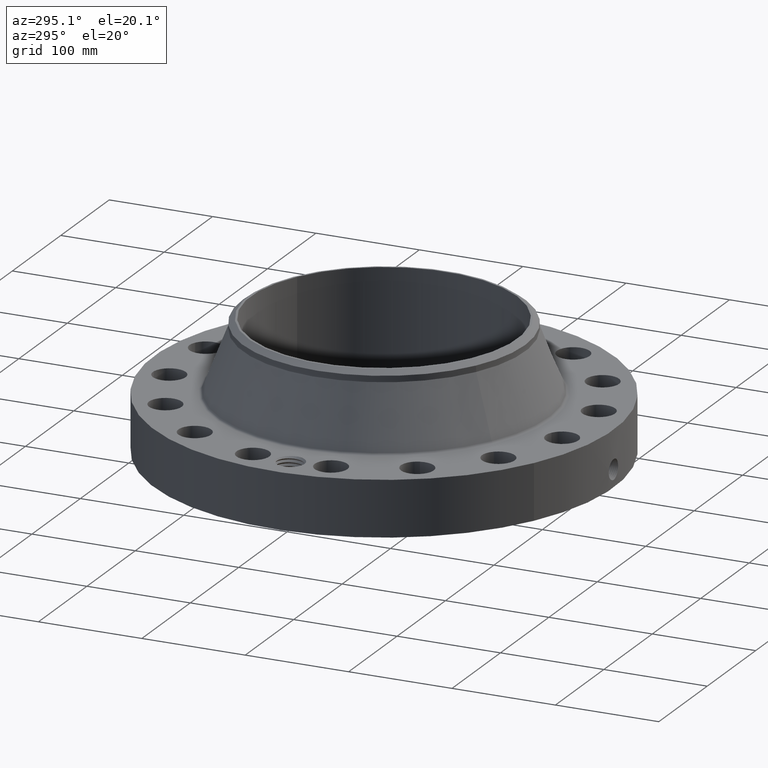
[diagram: clean part render]
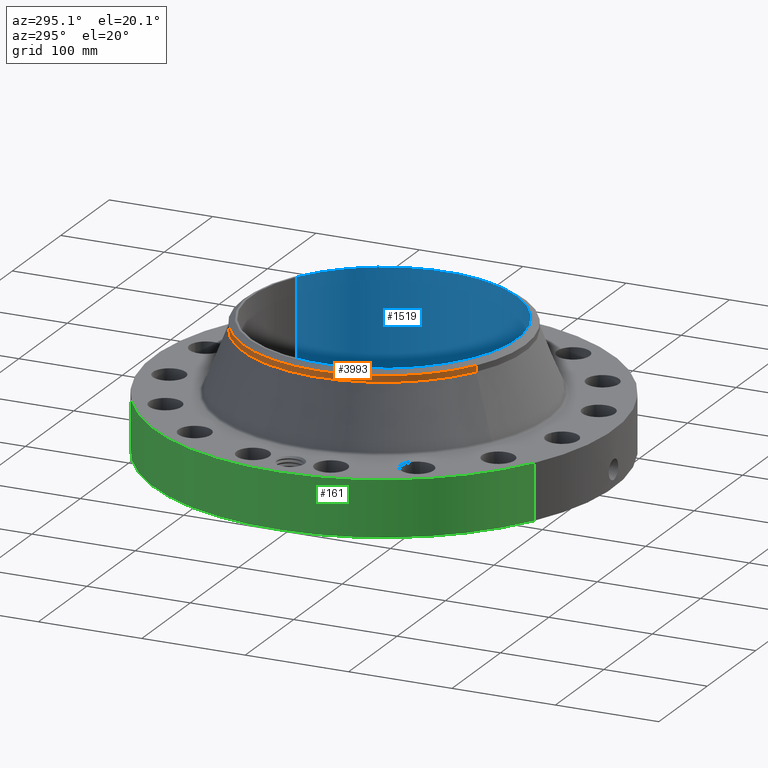
[diagram: same view with three faces highlighted in distinct colors, each labeled with its STEP entity id]
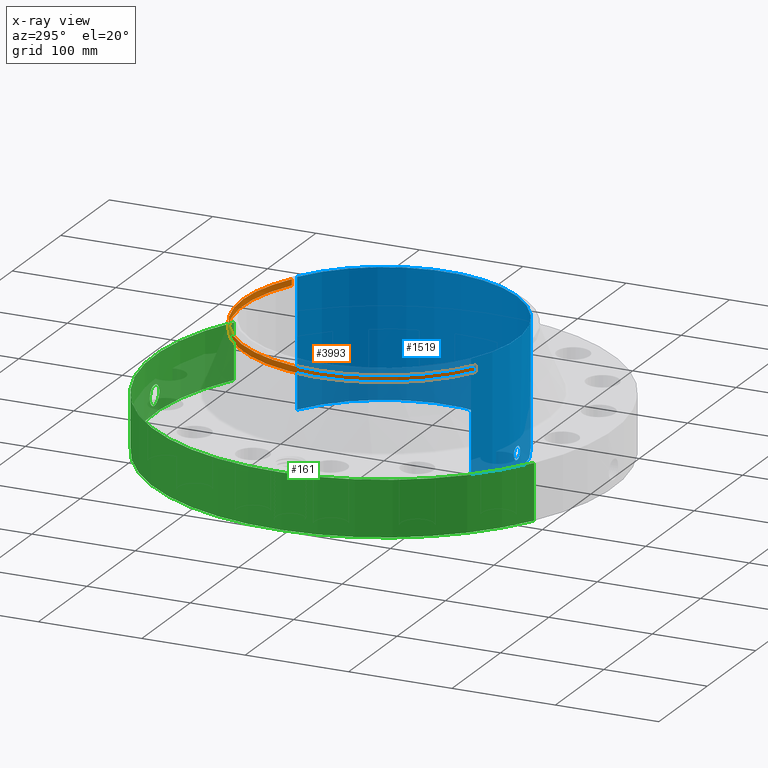
[diagram: x-ray of the same camera — body ghosted, the three highlighted faces saturated]
A machine part, auxiliary view with three faces highlighted in distinct colors.
The next image is the same camera in x-ray (body ghosted, the three faces saturated) — at least one of them is partly hidden behind the body in this view.
Their STEP definitions:

[orange] entity #3993 — the highlighted cylindrical surface (partial cylindrical patch) has radius 136.525 mm, axis along (0, 0, -1).
#3191=AXIS2_PLACEMENT_3D('Circle Axis2P3D',#3189,#3190,$) ;
#3620=AXIS2_PLACEMENT_3D('Circle Axis2P3D',#3618,#3619,$) ;
#3647=AXIS2_PLACEMENT_3D('Circle Axis2P3D',#3645,#3646,$) ;
#3966=AXIS2_PLACEMENT_3D('Cylinder Axis2P3D',#3963,#3964,#3965) ;
#3167=CARTESIAN_POINT('Vertex',(2.57691227001,4.71700627018,4.71862959014)) ;
#3174=CARTESIAN_POINT('Vertex',(-2.57691227001,-4.71700627018,4.71862959014)) ;
#3189=CARTESIAN_POINT('Axis2P3D Location',(0.,0.,4.71862959014)) ;
#3615=CARTESIAN_POINT('Vertex',(-2.57691227001,4.71700627018,4.95485006258)) ;
#3618=CARTESIAN_POINT('Axis2P3D Location',(0.,0.,4.95485006258)) ;
#3622=CARTESIAN_POINT('Vertex',(-2.57691227001,-4.71700627018,4.95485006258)) ;
#3642=CARTESIAN_POINT('Vertex',(2.57691227001,4.71700627018,4.95485006258)) ;
#3645=CARTESIAN_POINT('Axis2P3D Location',(0.,0.,4.95485006258)) ;
#3963=CARTESIAN_POINT('Axis2P3D Location',(0.,0.,2.69000000001)) ;
#3968=CARTESIAN_POINT('Line Origine',(-2.57691227001,-4.71700627018,4.83673982636)) ;
#3973=CARTESIAN_POINT('Line Origine',(2.57691227001,4.71700627018,4.83673982636)) ;
#3190=DIRECTION('Axis2P3D Direction',(0.,0.,-0.0393700787402)) ;
#3619=DIRECTION('Axis2P3D Direction',(0.,0.,-0.0393700787402)) ;
#3646=DIRECTION('Axis2P3D Direction',(0.,0.,-0.0393700787402)) ;
#3964=DIRECTION('Axis2P3D Direction',(0.,0.,-0.0393700787402)) ;
#3965=DIRECTION('Axis2P3D XDirection',(-0.0188750212049,-0.0345504945626,0.)) ;
#3969=DIRECTION('Vector Direction',(0.,0.,-0.0393700787402)) ;
#3974=DIRECTION('Vector Direction',(0.,0.,-0.0393700787402)) ;
#3970=VECTOR('Line Direction',#3969,0.0393700787402) ;
#3975=VECTOR('Line Direction',#3974,0.0393700787402) ;
#3987=ORIENTED_EDGE('',*,*,#3977,.F.) ;
#3988=ORIENTED_EDGE('',*,*,#3193,.F.) ;
#3989=ORIENTED_EDGE('',*,*,#3972,.T.) ;
#3990=ORIENTED_EDGE('',*,*,#3624,.F.) ;
#3991=ORIENTED_EDGE('',*,*,#3649,.T.) ;
#3993=ADVANCED_FACE('PartBody',(#3992),#3967,.T.) ;
#3192=CIRCLE('generated circle',#3191,5.37500000002) ;
#3621=CIRCLE('generated circle',#3620,5.37500000002) ;
#3648=CIRCLE('generated circle',#3647,5.37500000002) ;
#3967=CYLINDRICAL_SURFACE('generated cylinder',#3966,5.37500000002) ;
#3193=EDGE_CURVE('',#3175,#3168,#3192,.T.) ;
#3624=EDGE_CURVE('',#3616,#3623,#3621,.F.) ;
#3649=EDGE_CURVE('',#3616,#3643,#3648,.T.) ;
#3972=EDGE_CURVE('',#3175,#3623,#3971,.F.) ;
#3977=EDGE_CURVE('',#3168,#3643,#3976,.F.) ;
#3986=EDGE_LOOP('',(#3987,#3988,#3989,#3990,#3991)) ;
#3992=FACE_OUTER_BOUND('',#3986,.T.) ;
#3971=LINE('Line',#3968,#3970) ;
#3976=LINE('Line',#3973,#3975) ;
#3168=VERTEX_POINT('',#3167) ;
#3175=VERTEX_POINT('',#3174) ;
#3616=VERTEX_POINT('',#3615) ;
#3623=VERTEX_POINT('',#3622) ;
#3643=VERTEX_POINT('',#3642) ;

[blue] entity #1519 — the highlighted cylindrical surface (partial cylindrical patch) has radius 128.727 mm, axis along (0, 0, -1).
#250=AXIS2_PLACEMENT_3D('Circle Axis2P3D',#248,#249,$) ;
#1450=AXIS2_PLACEMENT_3D('Cylinder Axis2P3D',#1447,#1448,#1449) ;
#1454=AXIS2_PLACEMENT_3D('Circle Axis2P3D',#1452,#1453,$) ;
#248=CARTESIAN_POINT('Axis2P3D Location',(0.,0.,0.250000000001)) ;
#252=CARTESIAN_POINT('Vertex',(2.42972862966,4.44758842368,0.250000000001)) ;
#254=CARTESIAN_POINT('Vertex',(-2.42972862966,-4.44758842368,0.250000000001)) ;
#1447=CARTESIAN_POINT('Axis2P3D Location',(0.,0.,2.69000000001)) ;
#1452=CARTESIAN_POINT('Axis2P3D Location',(0.,0.,5.13000000002)) ;
#1456=CARTESIAN_POINT('Vertex',(2.42972862966,4.44758842368,5.13000000002)) ;
#1458=CARTESIAN_POINT('Vertex',(-2.42972862966,-4.44758842368,5.13000000002)) ;
#1461=CARTESIAN_POINT('Line Origine',(2.42972862966,4.44758842368,2.69000000001)) ;
#1466=CARTESIAN_POINT('Line Origine',(-2.42972862966,-4.44758842368,2.69000000001)) ;
#1478=CARTESIAN_POINT('Control Point',(0.219395640473,-5.06324891282,0.820143615352)) ;
#1479=CARTESIAN_POINT('Control Point',(0.206921719494,-5.06378942029,0.797310256157)) ;
#1480=CARTESIAN_POINT('Control Point',(0.19147825999,-5.06442011497,0.776101319629)) ;
#1481=CARTESIAN_POINT('Control Point',(0.173345217367,-5.0650922661,0.757029760985)) ;
#1482=CARTESIAN_POINT('Control Point',(0.112136795122,-5.06703633096,0.70755106362)) ;
#1483=CARTESIAN_POINT('Control Point',(0.0349822800749,-5.06829938306,0.684026557529)) ;
#1484=CARTESIAN_POINT('Control Point',(-0.0195598942694,-5.06839375583,0.682387718766)) ;
#1485=CARTESIAN_POINT('Control Point',(-0.124145130407,-5.06700352883,0.707529844787)) ;
#1486=CARTESIAN_POINT('Control Point',(-0.203189946679,-5.06412590488,0.780440794209)) ;
#1487=CARTESIAN_POINT('Control Point',(-0.232166968341,-5.06270914309,0.826655447625)) ;
#1488=CARTESIAN_POINT('Control Point',(-0.255833238282,-5.06154277102,0.904811736317)) ;
#1489=CARTESIAN_POINT('Control Point',(-0.248295655354,-5.0619139393,0.984200357149)) ;
#1490=CARTESIAN_POINT('Control Point',(-0.242061572612,-5.06222543809,1.0107834778)) ;
#1491=CARTESIAN_POINT('Control Point',(-0.232323388935,-5.06268874054,1.03619229983)) ;
#1492=CARTESIAN_POINT('Control Point',(-0.219395640473,-5.06324891282,1.05985638466)) ;
#1493=CARTESIAN_POINT('Vertex',(0.219395640473,-5.06324891282,0.820143615352)) ;
#1495=CARTESIAN_POINT('Vertex',(-0.219395640473,-5.06324891282,1.05985638466)) ;
#1499=CARTESIAN_POINT('Control Point',(-0.219395640473,-5.06324891282,1.05985638466)) ;
#1500=CARTESIAN_POINT('Control Point',(-0.206921719494,-5.06378942029,1.08268974385)) ;
#1501=CARTESIAN_POINT('Control Point',(-0.191478259992,-5.06442011497,1.10389868038)) ;
#1502=CARTESIAN_POINT('Control Point',(-0.173345217367,-5.0650922661,1.12297023902)) ;
#1503=CARTESIAN_POINT('Control Point',(-0.112136795117,-5.06703633096,1.17244893639)) ;
#1504=CARTESIAN_POINT('Control Point',(-0.0349822800613,-5.06829938306,1.19597344248)) ;
#1505=CARTESIAN_POINT('Control Point',(0.0195598942481,-5.06839375583,1.19761228125)) ;
#1506=CARTESIAN_POINT('Control Point',(0.124145130392,-5.06700352883,1.17247015523)) ;
#1507=CARTESIAN_POINT('Control Point',(0.203189946671,-5.06412590488,1.09955920581)) ;
#1508=CARTESIAN_POINT('Control Point',(0.232166968343,-5.06270914309,1.05334455238)) ;
#1509=CARTESIAN_POINT('Control Point',(0.255833238278,-5.06154277102,0.975188263701)) ;
#1510=CARTESIAN_POINT('Control Point',(0.248295655357,-5.0619139393,0.895799642882)) ;
#1511=CARTESIAN_POINT('Control Point',(0.242061572604,-5.06222543809,0.869216522184)) ;
#1512=CARTESIAN_POINT('Control Point',(0.23232338893,-5.06268874054,0.843807700171)) ;
#1513=CARTESIAN_POINT('Control Point',(0.219395640473,-5.06324891282,0.820143615352)) ;
#249=DIRECTION('Axis2P3D Direction',(0.,0.,-0.0393700787402)) ;
#1448=DIRECTION('Axis2P3D Direction',(0.,0.,-0.0393700787402)) ;
#1449=DIRECTION('Axis2P3D XDirection',(-0.0188750212049,-0.0345504945626,0.)) ;
#1453=DIRECTION('Axis2P3D Direction',(0.,0.,-0.0393700787402)) ;
#1462=DIRECTION('Vector Direction',(0.,0.,-0.0393700787402)) ;
#1467=DIRECTION('Vector Direction',(0.,0.,-0.0393700787402)) ;
#1463=VECTOR('Line Direction',#1462,0.0393700787402) ;
#1468=VECTOR('Line Direction',#1467,0.0393700787402) ;
#1472=ORIENTED_EDGE('',*,*,#1460,.F.) ;
#1473=ORIENTED_EDGE('',*,*,#1465,.T.) ;
#1474=ORIENTED_EDGE('',*,*,#256,.T.) ;
#1475=ORIENTED_EDGE('',*,*,#1470,.F.) ;
#1516=ORIENTED_EDGE('',*,*,#1497,.F.) ;
#1517=ORIENTED_EDGE('',*,*,#1514,.F.) ;
#1518=FACE_BOUND('',#1515,.T.) ;
#1519=ADVANCED_FACE('PartBody',(#1476,#1518),#1451,.F.) ;
#1477=B_SPLINE_CURVE_WITH_KNOTS('',5,(#1478,#1479,#1480,#1481,#1482,#1483,#1484,#1485,#1486,#1487,#1488,#1489,#1490,#1491,#1492),.UNSPECIFIED.,.F.,.U.,(6,3,3,3,6),(0.,4.6740594727,14.0221239086,23.3721121529,28.2162237401),.UNSPECIFIED.) ;
#1498=B_SPLINE_CURVE_WITH_KNOTS('',5,(#1499,#1500,#1501,#1502,#1503,#1504,#1505,#1506,#1507,#1508,#1509,#1510,#1511,#1512,#1513),.UNSPECIFIED.,.F.,.U.,(6,3,3,3,6),(0.,4.67405947244,14.02212391,23.3721121535,28.2162237389),.UNSPECIFIED.) ;
#251=CIRCLE('generated circle',#250,5.06800000002) ;
#1455=CIRCLE('generated circle',#1454,5.06800000002) ;
#1451=CYLINDRICAL_SURFACE('generated cylinder',#1450,5.06800000002) ;
#256=EDGE_CURVE('',#253,#255,#251,.T.) ;
#1460=EDGE_CURVE('',#1457,#1459,#1455,.T.) ;
#1465=EDGE_CURVE('',#1457,#253,#1464,.T.) ;
#1470=EDGE_CURVE('',#1459,#255,#1469,.T.) ;
#1497=EDGE_CURVE('',#1494,#1496,#1477,.T.) ;
#1514=EDGE_CURVE('',#1496,#1494,#1498,.T.) ;
#1471=EDGE_LOOP('',(#1472,#1473,#1474,#1475)) ;
#1515=EDGE_LOOP('',(#1516,#1517)) ;
#1476=FACE_OUTER_BOUND('',#1471,.T.) ;
#1464=LINE('Line',#1461,#1463) ;
#1469=LINE('Line',#1466,#1468) ;
#253=VERTEX_POINT('',#252) ;
#255=VERTEX_POINT('',#254) ;
#1457=VERTEX_POINT('',#1456) ;
#1459=VERTEX_POINT('',#1458) ;
#1494=VERTEX_POINT('',#1493) ;
#1496=VERTEX_POINT('',#1495) ;

[green] entity #161 — the highlighted cylindrical surface (partial cylindrical patch) has radius 222.25 mm, axis along (0, 0, -1).
#38=AXIS2_PLACEMENT_3D('Cylinder Axis2P3D',#35,#36,#37) ;
#42=AXIS2_PLACEMENT_3D('Circle Axis2P3D',#40,#41,$) ;
#58=AXIS2_PLACEMENT_3D('Circle Axis2P3D',#56,#57,$) ;
#35=CARTESIAN_POINT('Axis2P3D Location',(0.,0.,2.69000000001)) ;
#40=CARTESIAN_POINT('Axis2P3D Location',(0.,0.,0.250000000001)) ;
#44=CARTESIAN_POINT('Vertex',(-4.1949734628,-7.67884741657,0.250000000001)) ;
#46=CARTESIAN_POINT('Vertex',(4.1949734628,7.67884741657,0.250000000001)) ;
#49=CARTESIAN_POINT('Line Origine',(-4.1949734628,-7.67884741657,1.31000000001)) ;
#53=CARTESIAN_POINT('Vertex',(-4.1949734628,-7.67884741657,2.37000000001)) ;
#56=CARTESIAN_POINT('Axis2P3D Location',(0.,0.,2.37000000001)) ;
#60=CARTESIAN_POINT('Vertex',(4.1949734628,7.67884741657,2.37000000001)) ;
#63=CARTESIAN_POINT('Line Origine',(4.1949734628,7.67884741657,1.31000000001)) ;
#75=CARTESIAN_POINT('Control Point',(-0.0581089625366,8.74980704639,1.28931263406)) ;
#76=CARTESIAN_POINT('Control Point',(-0.0391512505226,8.74993294779,1.29247036247)) ;
#77=CARTESIAN_POINT('Control Point',(-0.0199353917117,8.74999839758,1.29407954697)) ;
#78=CARTESIAN_POINT('Control Point',(-0.000716211353151,8.74999997072,1.29411849893)) ;
#79=CARTESIAN_POINT('Vertex',(-0.0580953077663,8.74980738873,1.28931519353)) ;
#81=CARTESIAN_POINT('Vertex',(-0.000716087123921,8.74999997073,1.29411850938)) ;
#85=CARTESIAN_POINT('Control Point',(-0.0580952083203,8.74980713772,1.28931463772)) ;
#86=CARTESIAN_POINT('Control Point',(-0.0974883504074,8.74954558307,1.28448275707)) ;
#87=CARTESIAN_POINT('Control Point',(-0.136130062226,8.749012969,1.27246972712)) ;
#88=CARTESIAN_POINT('Control Point',(-0.171610206376,8.74831697744,1.25416185771)) ;
#89=CARTESIAN_POINT('Vertex',(-0.171610206376,8.74831697744,1.25416185771)) ;
#93=CARTESIAN_POINT('Control Point',(-0.0302669452421,8.74994765199,0.531133858009)) ;
#94=CARTESIAN_POINT('Control Point',(-0.0865126331864,8.74975309253,0.538286206305)) ;
#95=CARTESIAN_POINT('Control Point',(-0.141163784496,8.74911210098,0.555899644807)) ;
#96=CARTESIAN_POINT('Control Point',(-0.191479474382,8.74808366127,0.583467507007)) ;
#97=CARTESIAN_POINT('Control Point',(-0.264585210947,8.74612690907,0.64288390042)) ;
#98=CARTESIAN_POINT('Control Point',(-0.316528471692,8.74430507465,0.719208877405)) ;
#99=CARTESIAN_POINT('Control Point',(-0.333583708474,8.74365536413,0.75188083259)) ;
#100=CARTESIAN_POINT('Control Point',(-0.368975032973,8.74224702288,0.844035268627)) ;
#101=CARTESIAN_POINT('Control Point',(-0.375098714799,8.74194353724,0.942677587434)) ;
#102=CARTESIAN_POINT('Control Point',(-0.366946053518,8.7423150234,1.00432648177)) ;
#103=CARTESIAN_POINT('Control Point',(-0.333642919184,8.7437418217,1.10228712863)) ;
#104=CARTESIAN_POINT('Control Point',(-0.270966418092,8.74586349314,1.18272418417)) ;
#105=CARTESIAN_POINT('Control Point',(-0.24123134087,8.74676440562,1.21147018011)) ;
#106=CARTESIAN_POINT('Control Point',(-0.207766138586,8.74760772936,1.2355052793)) ;
#107=CARTESIAN_POINT('Control Point',(-0.171610206376,8.74831697744,1.25416185771)) ;
#108=CARTESIAN_POINT('Vertex',(-0.0302669452421,8.74994765199,0.531133858009)) ;
#112=CARTESIAN_POINT('Control Point',(-0.0302669452421,8.74994765199,0.531133858009)) ;
#113=CARTESIAN_POINT('Control Point',(-0.020172125313,8.74998257099,0.530866678197)) ;
#114=CARTESIAN_POINT('Control Point',(-0.0100722732255,8.75000000318,0.530947102164)) ;
#115=CARTESIAN_POINT('Control Point',(2.72878355316E-006,8.75000000003,0.531374667805)) ;
#116=CARTESIAN_POINT('Vertex',(2.72878354006E-006,8.75000000003,0.531374667805)) ;
#120=CARTESIAN_POINT('Control Point',(0.19328241765,8.74786499139,0.58620888473)) ;
#121=CARTESIAN_POINT('Control Point',(0.149259962889,8.74883765918,0.561336698193)) ;
#122=CARTESIAN_POINT('Control Point',(0.101168835307,8.74960564366,0.543535968943)) ;
#123=CARTESIAN_POINT('Control Point',(0.0508246751977,8.74999998419,0.533531464397)) ;
#124=CARTESIAN_POINT('Control Point',(2.72878352208E-006,8.75000000003,0.531374667805)) ;
#125=CARTESIAN_POINT('Vertex',(0.19328241765,8.74786499139,0.58620888473)) ;
#129=CARTESIAN_POINT('Control Point',(0.19328241765,8.74786499139,0.58620888473)) ;
#130=CARTESIAN_POINT('Control Point',(0.222320018162,8.74722341112,0.602614798421)) ;
#131=CARTESIAN_POINT('Control Point',(0.249702852817,8.74649784976,0.621904373411)) ;
#132=CARTESIAN_POINT('Control Point',(0.275025900468,8.74572453906,0.643907791783)) ;
#133=CARTESIAN_POINT('Control Point',(0.341959851619,8.74345928947,0.715550689508)) ;
#134=CARTESIAN_POINT('Control Point',(0.384721494886,8.74157999932,0.805221661417)) ;
#135=CARTESIAN_POINT('Control Point',(0.399824078796,8.74084549763,0.869596656501)) ;
#136=CARTESIAN_POINT('Control Point',(0.400741236122,8.74084616963,0.983900945048)) ;
#137=CARTESIAN_POINT('Control Point',(0.360682761469,8.74259093649,1.08862858388)) ;
#138=CARTESIAN_POINT('Control Point',(0.336434934064,8.74359787656,1.13009590903)) ;
#139=CARTESIAN_POINT('Control Point',(0.26754124675,8.74613174572,1.21398892363)) ;
#140=CARTESIAN_POINT('Control Point',(0.174601876382,8.74851033483,1.26870826518)) ;
#141=CARTESIAN_POINT('Control Point',(0.117427738753,8.74951483398,1.28858356662)) ;
#142=CARTESIAN_POINT('Control Point',(0.058271584454,8.75000017228,1.29701111921)) ;
#143=CARTESIAN_POINT('Control Point',(-2.58579355255E-005,8.75,1.29415298432)) ;
#144=CARTESIAN_POINT('Vertex',(-2.58579355366E-005,8.75,1.29415298432)) ;
#148=CARTESIAN_POINT('Control Point',(-0.000716087113735,8.74999997073,1.29411850936)) ;
#149=CARTESIAN_POINT('Control Point',(-0.000370996570186,8.74999999898,1.2941360633)) ;
#150=CARTESIAN_POINT('Control Point',(-2.58579413603E-005,8.75,1.29415298432)) ;
#36=DIRECTION('Axis2P3D Direction',(0.,0.,-0.0393700787402)) ;
#37=DIRECTION('Axis2P3D XDirection',(0.0188750212049,0.0345504945626,0.)) ;
#41=DIRECTION('Axis2P3D Direction',(0.,0.,-0.0393700787402)) ;
#50=DIRECTION('Vector Direction',(0.,0.,-0.0393700787402)) ;
#57=DIRECTION('Axis2P3D Direction',(0.,0.,-0.0393700787402)) ;
#64=DIRECTION('Vector Direction',(0.,0.,-0.0393700787402)) ;
#51=VECTOR('Line Direction',#50,0.0393700787402) ;
#65=VECTOR('Line Direction',#64,0.0393700787402) ;
#69=ORIENTED_EDGE('',*,*,#48,.F.) ;
#70=ORIENTED_EDGE('',*,*,#55,.T.) ;
#71=ORIENTED_EDGE('',*,*,#62,.T.) ;
#72=ORIENTED_EDGE('',*,*,#67,.F.) ;
#153=ORIENTED_EDGE('',*,*,#83,.F.) ;
#154=ORIENTED_EDGE('',*,*,#91,.T.) ;
#155=ORIENTED_EDGE('',*,*,#110,.F.) ;
#156=ORIENTED_EDGE('',*,*,#118,.T.) ;
#157=ORIENTED_EDGE('',*,*,#127,.F.) ;
#158=ORIENTED_EDGE('',*,*,#146,.T.) ;
#159=ORIENTED_EDGE('',*,*,#151,.F.) ;
#160=FACE_BOUND('',#152,.T.) ;
#161=ADVANCED_FACE('PartBody',(#73,#160),#39,.T.) ;
#74=B_SPLINE_CURVE_WITH_KNOTS('',3,(#75,#76,#77,#78),.UNSPECIFIED.,.F.,.U.,(4,4),(4.38916387412,6.52135751601),.UNSPECIFIED.) ;
#84=B_SPLINE_CURVE_WITH_KNOTS('',3,(#85,#86,#87,#88),.UNSPECIFIED.,.F.,.U.,(4,4),(0.,4.45941834659),.UNSPECIFIED.) ;
#92=B_SPLINE_CURVE_WITH_KNOTS('',5,(#93,#94,#95,#96,#97,#98,#99,#100,#101,#102,#103,#104,#105,#106,#107),.UNSPECIFIED.,.F.,.U.,(6,3,3,3,6),(0.,9.85389268385,16.4310811984,27.5941599248,35.168087617),.UNSPECIFIED.) ;
#111=B_SPLINE_CURVE_WITH_KNOTS('',3,(#112,#113,#114,#115),.UNSPECIFIED.,.F.,.U.,(4,4),(0.,1.05295553536),.UNSPECIFIED.) ;
#119=B_SPLINE_CURVE_WITH_KNOTS('',4,(#120,#121,#122,#123,#124),.UNSPECIFIED.,.F.,.U.,(5,5),(0.,7.0819836837),.UNSPECIFIED.) ;
#128=B_SPLINE_CURVE_WITH_KNOTS('',5,(#129,#130,#131,#132,#133,#134,#135,#136,#137,#138,#139,#140,#141,#142,#143),.UNSPECIFIED.,.F.,.U.,(6,3,3,3,6),(0.,5.8391737953,17.1007627863,25.5637753026,36.4607761736),.UNSPECIFIED.) ;
#147=B_SPLINE_CURVE_WITH_KNOTS('',2,(#148,#149,#150),.UNSPECIFIED.,.F.,.U.,(3,3),(1.04631464727,1.07212007524),.UNSPECIFIED.) ;
#43=CIRCLE('generated circle',#42,8.75000000003) ;
#59=CIRCLE('generated circle',#58,8.75000000003) ;
#39=CYLINDRICAL_SURFACE('generated cylinder',#38,8.75000000003) ;
#48=EDGE_CURVE('',#45,#47,#43,.T.) ;
#55=EDGE_CURVE('',#45,#54,#52,.F.) ;
#62=EDGE_CURVE('',#54,#61,#59,.T.) ;
#67=EDGE_CURVE('',#47,#61,#66,.F.) ;
#83=EDGE_CURVE('',#80,#82,#74,.T.) ;
#91=EDGE_CURVE('',#80,#90,#84,.T.) ;
#110=EDGE_CURVE('',#109,#90,#92,.T.) ;
#118=EDGE_CURVE('',#109,#117,#111,.T.) ;
#127=EDGE_CURVE('',#126,#117,#119,.T.) ;
#146=EDGE_CURVE('',#126,#145,#128,.T.) ;
#151=EDGE_CURVE('',#82,#145,#147,.T.) ;
#68=EDGE_LOOP('',(#69,#70,#71,#72)) ;
#152=EDGE_LOOP('',(#153,#154,#155,#156,#157,#158,#159)) ;
#73=FACE_OUTER_BOUND('',#68,.T.) ;
#52=LINE('Line',#49,#51) ;
#66=LINE('Line',#63,#65) ;
#45=VERTEX_POINT('',#44) ;
#47=VERTEX_POINT('',#46) ;
#54=VERTEX_POINT('',#53) ;
#61=VERTEX_POINT('',#60) ;
#80=VERTEX_POINT('',#79) ;
#82=VERTEX_POINT('',#81) ;
#90=VERTEX_POINT('',#89) ;
#109=VERTEX_POINT('',#108) ;
#117=VERTEX_POINT('',#116) ;
#126=VERTEX_POINT('',#125) ;
#145=VERTEX_POINT('',#144) ;